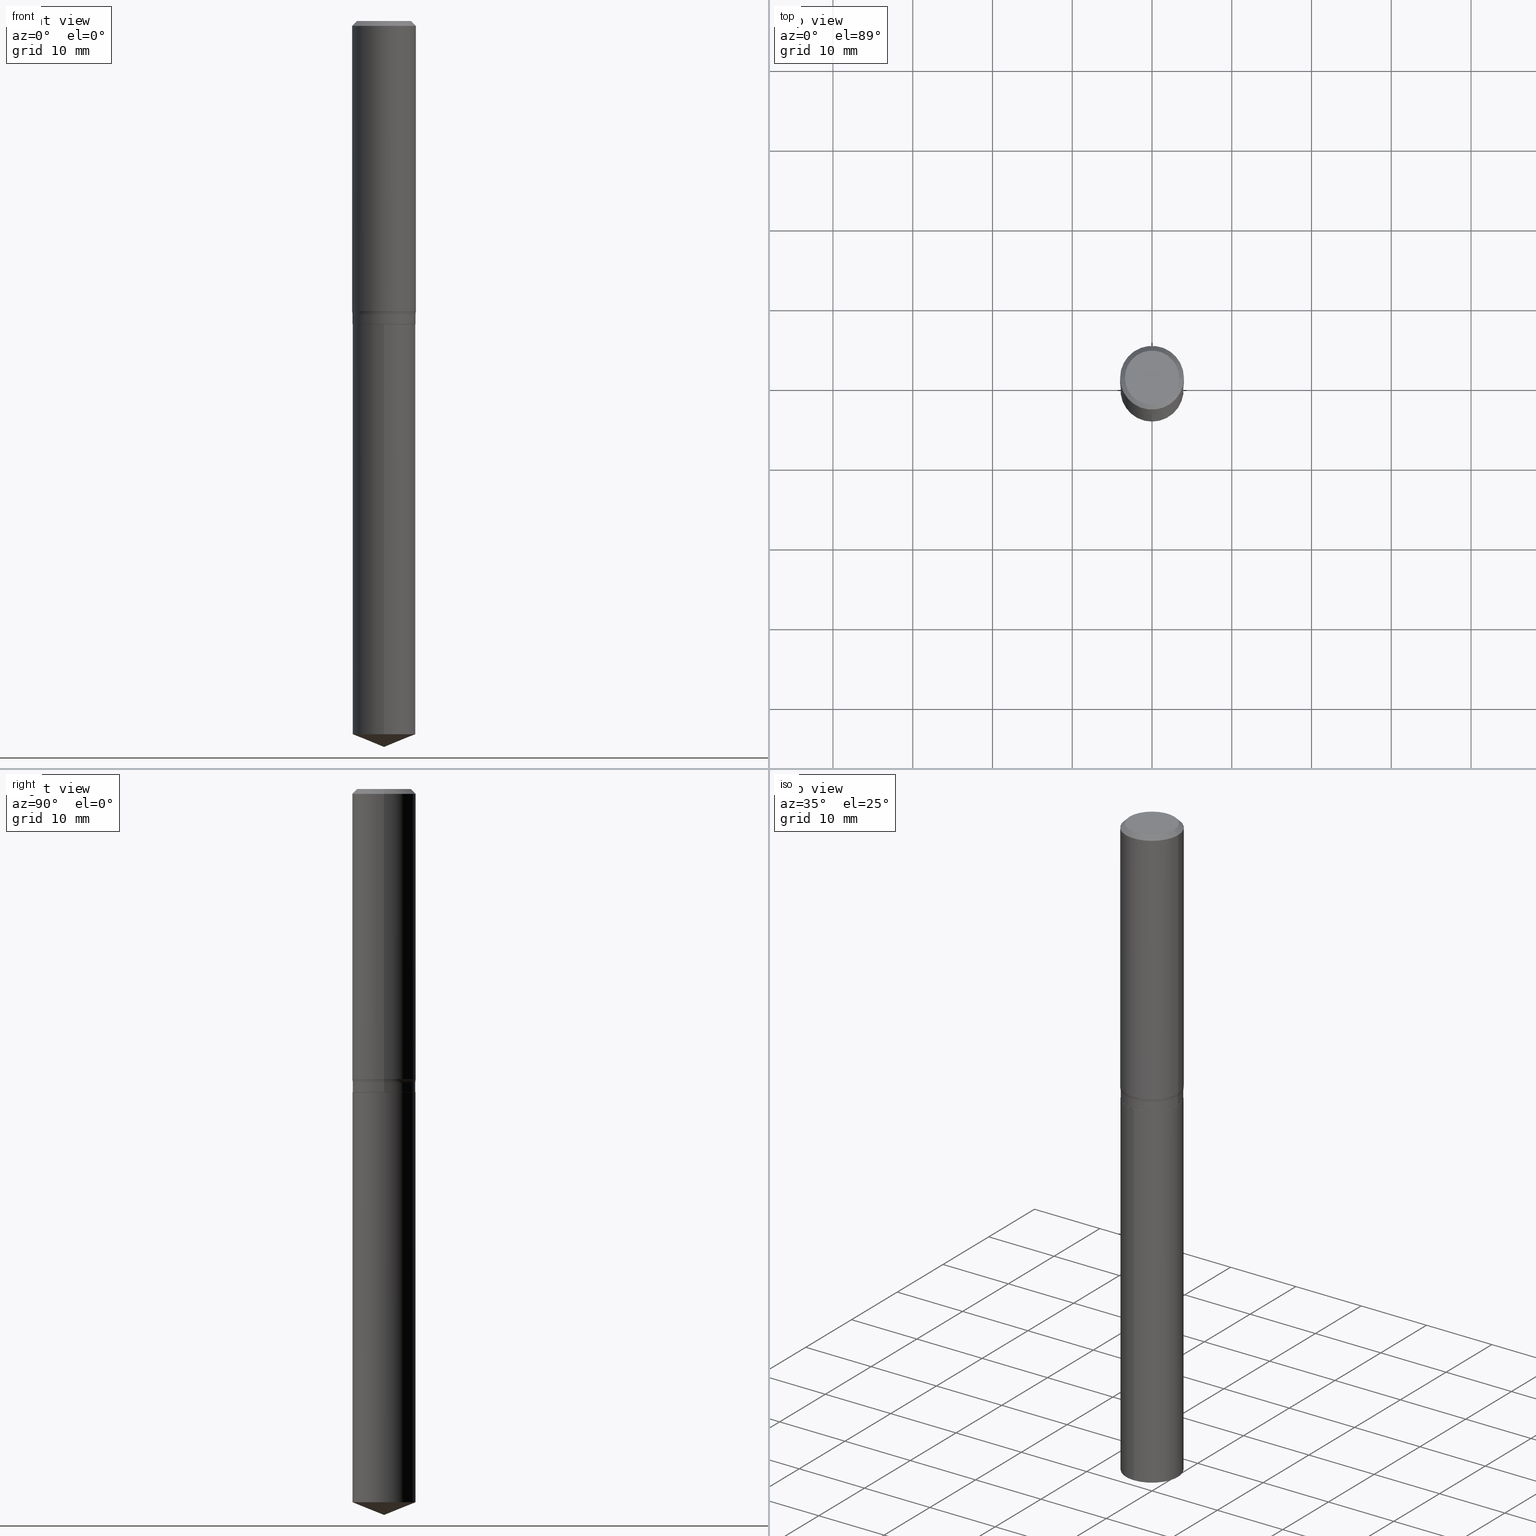
[diagram: canonical four-view strip — front | top / right | iso, engineering-drawing reading convention]
A machine part, canonical four-view strip (front | top / right | iso — engineering-drawing reading convention). The complete STEP part file that produces these views, byte-faithful:
ISO-10303-21;
HEADER;
FILE_DESCRIPTION (( 'STEP AP203' ),
    '1' );
FILE_NAME ('69272.STEP',
    '2024-04-19T17:36:34',
    ( '' ),
    ( '' ),
    'SwSTEP 2.0',
    'SolidWorks 2023',
    '' );
FILE_SCHEMA (( 'CONFIG_CONTROL_DESIGN' ));
ENDSEC;

DATA;
#1 = EDGE_LOOP ( 'NONE', ( #279, #152, #418, #468 ) ) ;
#2 = PERSON_AND_ORGANIZATION_ROLE ( 'creator' ) ;
#3 = CONICAL_SURFACE ( 'NONE', #195, 0.1549999999999999989, 0.7853981633972775267 ) ;
#4 = AXIS2_PLACEMENT_3D ( 'NONE', #372, #35, #148 ) ;
#5 = ORIENTED_EDGE ( 'NONE', *, *, #438, .F. ) ;
#6 = EDGE_CURVE ( 'NONE', #24, #223, #477, .T. ) ;
#7 = COORDINATED_UNIVERSAL_TIME_OFFSET ( 5, 0, .BEHIND. ) ;
#8 = VERTEX_POINT ( 'NONE', #433 ) ;
#9 = DIRECTION ( 'NONE',  ( -1.000000000000000000, 6.982962677686265922E-15, 0.000000000000000000 ) ) ;
#10 = AXIS2_PLACEMENT_3D ( 'NONE', #67, #329, #410 ) ;
#11 = VECTOR ( 'NONE', #179, 39.37007874015748143 ) ;
#12 = DIRECTION ( 'NONE',  ( -2.445468806185136597E-29, 3.491481338843145583E-15, 1.000000000000000000 ) ) ;
#13 = PLANE ( 'NONE',  #395 ) ;
#14 = VERTEX_POINT ( 'NONE', #287 ) ;
#15 = DIRECTION ( 'NONE',  ( -6.982962677686265133E-15, -1.000000000000000000, 3.513630860018345064E-15 ) ) ;
#16 = ORIENTED_EDGE ( 'NONE', *, *, #291, .T. ) ;
#17 = DIRECTION ( 'NONE',  ( 2.445445601509706217E-29, -3.491514569259089389E-15, -1.000000000000000000 ) ) ;
#18 = VECTOR ( 'NONE', #360, 39.37007874015748854 ) ;
#19 = ORGANIZATION ( 'UNSPECIFIED', 'UNSPECIFIED', '' ) ;
#20 = LOCAL_TIME ( 13, 36, 34.00000000000000000, #181 ) ;
#21 = APPROVAL_STATUS ( 'not_yet_approved' ) ;
#22 = CARTESIAN_POINT ( 'NONE',  ( 0.1575000000000000011, -1.163014681279185964E-15, -0.02362500000000014588 ) ) ;
#23 = CYLINDRICAL_SURFACE ( 'NONE', #4, 0.1554999999999999993 ) ;
#24 = VERTEX_POINT ( 'NONE', #316 ) ;
#25 = FACE_OUTER_BOUND ( 'NONE', #258, .T. ) ;
#26 = VECTOR ( 'NONE', #450, 39.37007874015748143 ) ;
#27 = DIRECTION ( 'NONE',  ( 1.000000000000000000, -6.982962677686268288E-15, 0.000000000000000000 ) ) ;
#28 = ORIENTED_EDGE ( 'NONE', *, *, #283, .T. ) ;
#29 = EDGE_CURVE ( 'NONE', #167, #445, #365, .T. ) ;
#30 = CARTESIAN_POINT ( 'NONE',  ( 3.659399521575438742E-29, -5.224652675444883351E-15, -1.496400000000000174 ) ) ;
#31 = CARTESIAN_POINT ( 'NONE',  ( -0.1554999999999999993, 1.104893954106955784E-15, -7.648944065346378824E-30 ) ) ;
#32 = CYLINDRICAL_SURFACE ( 'NONE', #185, 0.1554999999999999993 ) ;
#33 = ORIENTED_EDGE ( 'NONE', *, *, #188, .F. ) ;
#34 = DIRECTION ( 'NONE',  ( 1.000000000000000000, -6.982962677686263555E-15, 0.000000000000000000 ) ) ;
#35 = DIRECTION ( 'NONE',  ( -2.445445601509706497E-29, 3.491514569259089389E-15, 1.000000000000000000 ) ) ;
#36 = DIMENSIONAL_EXPONENTS ( 1.000000000000000000, 0.000000000000000000, 0.000000000000000000, 0.000000000000000000, 0.000000000000000000, 0.000000000000000000, 0.000000000000000000 ) ;
#37 = VERTEX_POINT ( 'NONE', #135 ) ;
#38 = APPLICATION_PROTOCOL_DEFINITION ( 'international standard', 'config_control_design', 1994, #218 ) ;
#39 = EDGE_CURVE ( 'NONE', #437, #194, #213, .T. ) ;
#40 = PERSON_AND_ORGANIZATION_ROLE ( 'classification_officer' ) ;
#41 = CONICAL_SURFACE ( 'NONE', #10, 0.1575000000000000011, 0.7853981633974449483 ) ;
#42 = AXIS2_PLACEMENT_3D ( 'NONE', #91, #52, #314 ) ;
#43 = ORIENTED_EDGE ( 'NONE', *, *, #267, .F. ) ;
#44 = CC_DESIGN_APPROVAL ( #131, ( #471 ) ) ;
#45 = ORIENTED_EDGE ( 'NONE', *, *, #226, .T. ) ;
#46 = CALENDAR_DATE ( 2024, 19, 4 ) ;
#47 = CARTESIAN_POINT ( 'NONE',  ( -0.1338749999999999940, 9.760872517903331886E-16, 4.101342130337800673E-18 ) ) ;
#48 = ORIENTED_EDGE ( 'NONE', *, *, #248, .F. ) ;
#49 = UNCERTAINTY_MEASURE_WITH_UNIT (LENGTH_MEASURE( 1.000000000000000082E-05 ), #401, 'distance_accuracy_value', 'NONE');
#50 = VECTOR ( 'NONE', #377, 39.37007874015748143 ) ;
#51 = PRODUCT_DEFINITION_FORMATION_WITH_SPECIFIED_SOURCE ( 'ANY', '', #158, .NOT_KNOWN. ) ;
#52 = DIRECTION ( 'NONE',  ( -2.445468806185136597E-29, 3.491481338843145583E-15, 1.000000000000000000 ) ) ;
#53 = ADVANCED_FACE ( 'NONE', ( #475 ), #41, .T. ) ;
#54 = CARTESIAN_POINT ( 'NONE',  ( -1.002970424325032604E-46, 1.431975951230895391E-32, 4.101342130344482109E-18 ) ) ;
#55 = CONICAL_SURFACE ( 'NONE', #307, 0.1575000000000000011, 0.7853981633974449483 ) ;
#56 = DIRECTION ( 'NONE',  ( 1.000000000000000000, -6.982962677686263555E-15, 0.000000000000000000 ) ) ;
#57 = AXIS2_PLACEMENT_3D ( 'NONE', #58, #166, #15 ) ;
#58 = CARTESIAN_POINT ( 'NONE',  ( 8.608428557293372452E-29, -1.229068880858470422E-14, -3.520173921882633561 ) ) ;
#59 = CARTESIAN_POINT ( 'NONE',  ( -1.085850696380128480E-15, -0.1555000000000123228, -3.520173921882633117 ) ) ;
#60 = ADVANCED_FACE ( 'NONE', ( #326 ), #32, .T. ) ;
#61 = LINE ( 'NONE', #432, #229 ) ;
#62 = PLANE ( 'NONE',  #463 ) ;
#63 = CC_DESIGN_APPROVAL ( #490, ( #309 ) ) ;
#64 = CARTESIAN_POINT ( 'NONE',  ( 0.000000000000000000, 0.000000000000000000, 0.000000000000000000 ) ) ;
#65 = DIRECTION ( 'NONE',  ( -2.438088387897960049E-29, 3.491481338843145188E-15, 1.000000000000000000 ) ) ;
#66 = EDGE_CURVE ( 'NONE', #223, #37, #254, .T. ) ;
#67 = CARTESIAN_POINT ( 'NONE',  ( 5.777420054612421104E-31, -8.248624663016984002E-17, -0.02362500000000014588 ) ) ;
#68 = EDGE_LOOP ( 'NONE', ( #141, #100, #491, #177 ) ) ;
#69 = CIRCLE ( 'NONE', #176, 0.1575000000000000011 ) ;
#70 = CARTESIAN_POINT ( 'NONE',  ( -0.1575000000000000844, -3.879823846748023569E-15, -1.431750071225214915 ) ) ;
#71 = AXIS2_PLACEMENT_3D ( 'NONE', #230, #345, #304 ) ;
#72 = ORIENTED_EDGE ( 'NONE', *, *, #6, .T. ) ;
#73 = DIRECTION ( 'NONE',  ( 1.000000000000000000, -6.982962677686266711E-15, 4.876176775795935793E-29 ) ) ;
#74 = APPROVAL_STATUS ( 'not_yet_approved' ) ;
#75 = EDGE_LOOP ( 'NONE', ( #16, #146 ) ) ;
#76 = EDGE_CURVE ( 'NONE', #445, #14, #154, .T. ) ;
#77 = CARTESIAN_POINT ( 'NONE',  ( 0.000000000000000000, 0.000000000000000000, 0.000000000000000000 ) ) ;
#78 = ORIENTED_EDGE ( 'NONE', *, *, #39, .F. ) ;
#79 = CARTESIAN_POINT ( 'NONE',  ( -8.751531957252333368E-28, 1.249511565384764858E-13, 35.78707874015748303 ) ) ;
#80 = CIRCLE ( 'NONE', #127, 0.1554999999999999993 ) ;
#81 = ORIENTED_EDGE ( 'NONE', *, *, #291, .F. ) ;
#82 = LENGTH_MEASURE_WITH_UNIT ( LENGTH_MEASURE( 0.02539999999999999897 ), #461 );
#83 = DIRECTION ( 'NONE',  ( -1.000000000000000000, 6.982962677686265922E-15, -4.876176775795935793E-29 ) ) ;
#84 = DIRECTION ( 'NONE',  ( -2.445445601509706497E-29, 3.491514569259089389E-15, 1.000000000000000000 ) ) ;
#85 = CARTESIAN_POINT ( 'NONE',  ( 0.000000000000000000, 0.000000000000000000, 0.000000000000000000 ) ) ;
#86 = EDGE_CURVE ( 'NONE', #194, #184, #294, .T. ) ;
#87 = ORIENTED_EDGE ( 'NONE', *, *, #178, .T. ) ;
#88 = CARTESIAN_POINT ( 'NONE',  ( 3.659399521575439863E-29, -5.224652675444884140E-15, -1.496400000000000396 ) ) ;
#89 = DIRECTION ( 'NONE',  ( 0.7071067811864267805, -2.468850131080992517E-15, 0.7071067811866682540 ) ) ;
#90 = AXIS2_PLACEMENT_3D ( 'NONE', #85, #351, #132 ) ;
#91 = CARTESIAN_POINT ( 'NONE',  ( -1.002970424325032604E-46, 1.431975951230895391E-32, 4.101342130344482109E-18 ) ) ;
#92 = AXIS2_PLACEMENT_3D ( 'NONE', #392, #119, #83 ) ;
#93 = CARTESIAN_POINT ( 'NONE',  ( 3.658176787172346501E-29, -5.222906934775461847E-15, -1.495900000000000230 ) ) ;
#94 = ORIENTED_EDGE ( 'NONE', *, *, #172, .F. ) ;
#95 = CC_DESIGN_PERSON_AND_ORGANIZATION_ASSIGNMENT ( #107, #217, ( #158 ) ) ;
#96 = DIRECTION ( 'NONE',  ( 1.000000000000000000, -6.982962677686266711E-15, 0.000000000000000000 ) ) ;
#97 = ORIENTED_EDGE ( 'NONE', *, *, #157, .T. ) ;
#98 = CARTESIAN_POINT ( 'NONE',  ( 0.1338749999999999940, -1.040731925365424925E-15, 4.101342130351390035E-18 ) ) ;
#99 = ADVANCED_FACE ( 'NONE', ( #247 ), #3, .T. ) ;
#100 = ORIENTED_EDGE ( 'NONE', *, *, #459, .T. ) ;
#101 = CARTESIAN_POINT ( 'NONE',  ( -1.085850696380177586E-15, -0.1555000000000052174, -1.496399999999999730 ) ) ;
#102 = AXIS2_PLACEMENT_3D ( 'NONE', #88, #235, #56 ) ;
#103 = DIRECTION ( 'NONE',  ( 1.000000000000000000, -6.982962677686266711E-15, 4.876176775795935793E-29 ) ) ;
#104 = PERSON_AND_ORGANIZATION ( #476, #19 ) ;
#105 = VERTEX_POINT ( 'NONE', #138 ) ;
#106 = DIRECTION ( 'NONE',  ( -6.982962677686265133E-15, -1.000000000000000000, 3.513630860018345064E-15 ) ) ;
#107 = PERSON_AND_ORGANIZATION ( #476, #19 ) ;
#108 = EDGE_LOOP ( 'NONE', ( #373, #268, #441, #94 ) ) ;
#109 = DIRECTION ( 'NONE',  ( -6.982962677686266711E-15, -1.000000000000000000, 3.498761904101810992E-15 ) ) ;
#110 = ORIENTED_EDGE ( 'NONE', *, *, #449, .F. ) ;
#111 = ADVANCED_FACE ( 'NONE', ( #173 ), #142, .T. ) ;
#112 = DIRECTION ( 'NONE',  ( 1.000000000000000000, -6.982962677686267499E-15, 4.883557194083113462E-29 ) ) ;
#113 = CIRCLE ( 'NONE', #102, 0.1549999999999999989 ) ;
#114 = ORIENTED_EDGE ( 'NONE', *, *, #116, .F. ) ;
#115 = CC_DESIGN_APPROVAL ( #200, ( #51 ) ) ;
#116 = EDGE_CURVE ( 'NONE', #445, #378, #219, .T. ) ;
#117 = PERSON_AND_ORGANIZATION_ROLE ( 'design_supplier' ) ;
#118 = ADVANCED_FACE ( 'NONE', ( #337 ), #55, .T. ) ;
#119 = DIRECTION ( 'NONE',  ( 2.438088387897960049E-29, -3.491481338843145188E-15, -1.000000000000000000 ) ) ;
#120 = PERSON_AND_ORGANIZATION ( #476, #19 ) ;
#121 = EDGE_CURVE ( 'NONE', #480, #14, #409, .T. ) ;
#122 = VECTOR ( 'NONE', #277, 39.37007874015748143 ) ;
#123 = EDGE_CURVE ( 'NONE', #488, #215, #272, .T. ) ;
#124 = ORIENTED_EDGE ( 'NONE', *, *, #172, .T. ) ;
#125 = VECTOR ( 'NONE', #276, 39.37007874015748143 ) ;
#126 = FACE_OUTER_BOUND ( 'NONE', #331, .T. ) ;
#127 = AXIS2_PLACEMENT_3D ( 'NONE', #204, #363, #361 ) ;
#128 = DIRECTION ( 'NONE',  ( 1.000000000000000000, -6.982962677686263555E-15, 0.000000000000000000 ) ) ;
#129 = CARTESIAN_POINT ( 'NONE',  ( -0.1549999999999999989, -4.123311435016729451E-15, -1.496400000000000396 ) ) ;
#130 = ORIENTED_EDGE ( 'NONE', *, *, #259, .F. ) ;
#131 = APPROVAL ( #205, 'UNSPECIFIED' ) ;
#132 = DIRECTION ( 'NONE',  ( 1.000000000000000000, -6.982962677686267499E-15, 4.876176775795936353E-29 ) ) ;
#133 = VECTOR ( 'NONE', #414, 39.37007874015748143 ) ;
#134 = AXIS2_PLACEMENT_3D ( 'NONE', #293, #451, #426 ) ;
#135 = CARTESIAN_POINT ( 'NONE',  ( -0.1554999999999999993, -4.036661465473460250E-15, -1.495900000000000230 ) ) ;
#136 = APPROVAL_ROLE ( '' ) ;
#137 = EDGE_LOOP ( 'NONE', ( #274, #28, #81, #387 ) ) ;
#138 = CARTESIAN_POINT ( 'NONE',  ( 0.1575000000000000011, -1.182302868365756679E-15, -0.02362500000000014588 ) ) ;
#139 = DIRECTION ( 'NONE',  ( -2.445468806185136597E-29, 3.491481338843145583E-15, 1.000000000000000000 ) ) ;
#140 = DIRECTION ( 'NONE',  ( -2.445468806185136597E-29, 3.491481338843145583E-15, 1.000000000000000000 ) ) ;
#141 = ORIENTED_EDGE ( 'NONE', *, *, #438, .T. ) ;
#142 = CYLINDRICAL_SURFACE ( 'NONE', #220, 0.1554999999999999993 ) ;
#143 = DIRECTION ( 'NONE',  ( -2.445468806185136597E-29, 3.491481338843145583E-15, 1.000000000000000000 ) ) ;
#144 = ADVANCED_FACE ( 'NONE', ( #457 ), #444, .T. ) ;
#145 = DIRECTION ( 'NONE',  ( 1.000000000000000000, -6.982962677686263555E-15, 0.000000000000000000 ) ) ;
#146 = ORIENTED_EDGE ( 'NONE', *, *, #473, .T. ) ;
#147 = CALENDAR_DATE ( 2024, 19, 4 ) ;
#148 = DIRECTION ( 'NONE',  ( -6.982962677686265133E-15, -1.000000000000000000, 3.513630860018345064E-15 ) ) ;
#149 = LINE ( 'NONE', #400, #122 ) ;
#150 = AXIS2_PLACEMENT_3D ( 'NONE', #357, #472, #252 ) ;
#151 = EDGE_LOOP ( 'NONE', ( #339, #189, #398, #295 ) ) ;
#152 = ORIENTED_EDGE ( 'NONE', *, *, #267, .T. ) ;
#153 = ORIENTED_EDGE ( 'NONE', *, *, #473, .F. ) ;
#154 = CIRCLE ( 'NONE', #209, 0.07800000000000006928 ) ;
#155 = VERTEX_POINT ( 'NONE', #388 ) ;
#156 = LINE ( 'NONE', #298, #301 ) ;
#157 = EDGE_CURVE ( 'NONE', #378, #105, #69, .T. ) ;
#158 = PRODUCT ( '69272', '69272', '', ( #389 ) ) ;
#159 = DIRECTION ( 'NONE',  ( 1.000000000000000000, -6.982962677686266711E-15, 0.000000000000000000 ) ) ;
#160 = DIRECTION ( 'NONE',  ( 1.000000000000000000, -6.982962677686265922E-15, 0.000000000000000000 ) ) ;
#161 = VECTOR ( 'NONE', #467, 39.37007874015748143 ) ;
#162 = LOCAL_TIME ( 13, 36, 34.00000000000000000, #183 ) ;
#163 = CARTESIAN_POINT ( 'NONE',  ( 3.501300137434611015E-29, -4.998928655570182750E-15, -1.431750071225214915 ) ) ;
#164 = EDGE_CURVE ( 'NONE', #167, #480, #404, .T. ) ;
#165 = DIRECTION ( 'NONE',  ( 1.000000000000000000, -6.982962677686265922E-15, 4.876176775795935793E-29 ) ) ;
#166 = DIRECTION ( 'NONE',  ( -2.445445601509706497E-29, 3.491514569259089389E-15, 1.000000000000000000 ) ) ;
#167 = VERTEX_POINT ( 'NONE', #380 ) ;
#168 = PRODUCT_RELATED_PRODUCT_CATEGORY ( 'detail', '', ( #158 ) ) ;
#169 = CALENDAR_DATE ( 2024, 19, 4 ) ;
#170 = DIRECTION ( 'NONE',  ( -6.982962677686266711E-15, -1.000000000000000000, 3.498761904101810992E-15 ) ) ;
#171 = DIRECTION ( 'NONE',  ( 6.982962677686265922E-15, 1.000000000000000000, -3.491514569259089389E-15 ) ) ;
#172 = EDGE_CURVE ( 'NONE', #14, #480, #187, .T. ) ;
#173 = FACE_OUTER_BOUND ( 'NONE', #393, .T. ) ;
#174 = DIRECTION ( 'NONE',  ( -2.445468806185136597E-29, 3.491481338843145583E-15, 1.000000000000000000 ) ) ;
#175 = PERSON_AND_ORGANIZATION ( #476, #19 ) ;
#176 = AXIS2_PLACEMENT_3D ( 'NONE', #305, #231, #190 ) ;
#177 = ORIENTED_EDGE ( 'NONE', *, *, #245, .F. ) ;
#178 = EDGE_CURVE ( 'NONE', #215, #105, #232, .T. ) ;
#179 = DIRECTION ( 'NONE',  ( -2.445468806185136877E-29, 3.491481338843145188E-15, 1.000000000000000000 ) ) ;
#180 = DIRECTION ( 'NONE',  ( -2.445468806185136597E-29, 3.491481338843145583E-15, 1.000000000000000000 ) ) ;
#181 = COORDINATED_UNIVERSAL_TIME_OFFSET ( 5, 0, .BEHIND. ) ;
#182 = EDGE_LOOP ( 'NONE', ( #282, #327, #370, #214 ) ) ;
#183 = COORDINATED_UNIVERSAL_TIME_OFFSET ( 5, 0, .BEHIND. ) ;
#184 = VERTEX_POINT ( 'NONE', #197 ) ;
#185 = AXIS2_PLACEMENT_3D ( 'NONE', #64, #180, #103 ) ;
#186 = DIRECTION ( 'NONE',  ( -6.982962677686265133E-15, -1.000000000000000000, 3.513630860018345064E-15 ) ) ;
#187 = CIRCLE ( 'NONE', #446, 0.1554999999999999993 ) ;
#188 = EDGE_CURVE ( 'NONE', #8, #194, #489, .T. ) ;
#189 = ORIENTED_EDGE ( 'NONE', *, *, #29, .F. ) ;
#190 = DIRECTION ( 'NONE',  ( 1.000000000000000000, -6.982962677686265922E-15, 0.000000000000000000 ) ) ;
#191 = VECTOR ( 'NONE', #234, 39.37007874015748143 ) ;
#192 = CARTESIAN_POINT ( 'NONE',  ( 1.104893954106992072E-15, 0.1554999999999947535, -1.496400000000000841 ) ) ;
#193 = DIRECTION ( 'NONE',  ( 1.000000000000000000, -6.982962677686264344E-15, 0.000000000000000000 ) ) ;
#194 = VERTEX_POINT ( 'NONE', #59 ) ;
#195 = AXIS2_PLACEMENT_3D ( 'NONE', #412, #355, #128 ) ;
#196 = AXIS2_PLACEMENT_3D ( 'NONE', #77, #417, #73 ) ;
#197 = CARTESIAN_POINT ( 'NONE',  ( -1.085850696380177586E-15, -0.1555000000000052174, -1.496399999999999730 ) ) ;
#198 = DIRECTION ( 'NONE',  ( -2.445468806185136597E-29, 3.491481338843145583E-15, 1.000000000000000000 ) ) ;
#199 = ORIENTED_EDGE ( 'NONE', *, *, #86, .T. ) ;
#200 = APPROVAL ( #74, 'UNSPECIFIED' ) ;
#201 = CARTESIAN_POINT ( 'NONE',  ( 3.659399521575438742E-29, -5.224652675444883351E-15, -1.496400000000000174 ) ) ;
#202 = AXIS2_PLACEMENT_3D ( 'NONE', #492, #397, #193 ) ;
#203 = ADVANCED_FACE ( 'NONE', ( #386 ), #243, .F. ) ;
#204 = CARTESIAN_POINT ( 'NONE',  ( 3.659399521575438742E-29, -5.224652675444883351E-15, -1.496400000000000174 ) ) ;
#205 = APPROVAL_STATUS ( 'not_yet_approved' ) ;
#206 = CARTESIAN_POINT ( 'NONE',  ( -0.2335000000000000131, -3.401086616385535602E-15, -1.449299999999999811 ) ) ;
#207 = APPROVAL_DATE_TIME ( #443, #490 ) ;
#208 = ORIENTED_EDGE ( 'NONE', *, *, #350, .F. ) ;
#209 = AXIS2_PLACEMENT_3D ( 'NONE', #206, #362, #246 ) ;
#210 = CIRCLE ( 'NONE', #465, 0.1575000000000000011 ) ;
#211 = LOCAL_TIME ( 13, 36, 34.00000000000000000, #341 ) ;
#212 = CARTESIAN_POINT ( 'NONE',  ( 1.104893954107042165E-15, 0.1554999999999947535, -1.496400000000000841 ) ) ;
#213 = LINE ( 'NONE', #439, #18 ) ;
#214 = ORIENTED_EDGE ( 'NONE', *, *, #226, .F. ) ;
#215 = VERTEX_POINT ( 'NONE', #98 ) ;
#216 = LINE ( 'NONE', #375, #26 ) ;
#217 = PERSON_AND_ORGANIZATION_ROLE ( 'design_owner' ) ;
#218 = APPLICATION_CONTEXT ( 'configuration controlled 3d designs of mechanical parts and assemblies' ) ;
#219 = LINE ( 'NONE', #260, #394 ) ;
#220 = AXIS2_PLACEMENT_3D ( 'NONE', #30, #447, #106 ) ;
#221 = CC_DESIGN_DATE_AND_TIME_ASSIGNMENT ( #330, #479, ( #309 ) ) ;
#222 = TOROIDAL_SURFACE ( 'NONE', #150, 0.2335000000000000131, 0.07800000000000002764 ) ;
#223 = VERTEX_POINT ( 'NONE', #484 ) ;
#224 = PRODUCT_DEFINITION_SHAPE ( 'NONE', 'NONE',  #309 ) ;
#225 = COORDINATED_UNIVERSAL_TIME_OFFSET ( 5, 0, .BEHIND. ) ;
#226 = EDGE_CURVE ( 'NONE', #167, #105, #149, .T. ) ;
#227 = PLANE ( 'NONE',  #92 ) ;
#228 = APPLICATION_PROTOCOL_DEFINITION ( 'international standard', 'config_control_design', 1994, #317 ) ;
#229 = VECTOR ( 'NONE', #233, 39.37007874015748143 ) ;
#230 = CARTESIAN_POINT ( 'NONE',  ( 3.659399521575438742E-29, -5.224652675444883351E-15, -1.496400000000000174 ) ) ;
#231 = DIRECTION ( 'NONE',  ( -2.445468806185136597E-29, 3.491481338843145583E-15, 1.000000000000000000 ) ) ;
#232 = LINE ( 'NONE', #22, #191 ) ;
#233 = DIRECTION ( 'NONE',  ( -2.445468806185136877E-29, 3.491481338843145188E-15, 1.000000000000000000 ) ) ;
#234 = DIRECTION ( 'NONE',  ( 0.7071067811865451302, -7.319954787623248157E-15, -0.7071067811865499042 ) ) ;
#235 = DIRECTION ( 'NONE',  ( -2.445468806185136597E-29, 3.491481338843145583E-15, 1.000000000000000000 ) ) ;
#236 = ADVANCED_FACE ( 'NONE', ( #240 ), #62, .F. ) ;
#237 = AXIS2_PLACEMENT_3D ( 'NONE', #338, #174, #34 ) ;
#238 = ORIENTED_EDGE ( 'NONE', *, *, #66, .T. ) ;
#239 = EDGE_CURVE ( 'NONE', #105, #378, #210, .T. ) ;
#240 = FACE_OUTER_BOUND ( 'NONE', #75, .T. ) ;
#241 = ADVANCED_FACE ( 'NONE', ( #312 ), #470, .T. ) ;
#242 = AXIS2_PLACEMENT_3D ( 'NONE', #275, #84, #170 ) ;
#243 = TOROIDAL_SURFACE ( 'NONE', #269, 0.2335000000000000131, 0.07800000000000002764 ) ;
#244 = FACE_OUTER_BOUND ( 'NONE', #108, .T. ) ;
#245 = EDGE_CURVE ( 'NONE', #155, #480, #61, .T. ) ;
#246 = DIRECTION ( 'NONE',  ( -1.000000000000000000, 7.105427357600997914E-15, 0.000000000000000000 ) ) ;
#247 = FACE_OUTER_BOUND ( 'NONE', #261, .T. ) ;
#248 = EDGE_CURVE ( 'NONE', #215, #488, #251, .T. ) ;
#249 = LINE ( 'NONE', #487, #50 ) ;
#250 = EDGE_LOOP ( 'NONE', ( #110, #482, #33 ) ) ;
#251 = CIRCLE ( 'NONE', #42, 0.1338749999999999940 ) ;
#252 = DIRECTION ( 'NONE',  ( 1.000000000000000000, -6.982962677686267499E-15, 4.883557194083113462E-29 ) ) ;
#253 = LOCAL_TIME ( 13, 36, 34.00000000000000000, #7 ) ;
#254 = LINE ( 'NONE', #129, #133 ) ;
#255 = ORIENTED_EDGE ( 'NONE', *, *, #164, .F. ) ;
#256 = ADVANCED_BREP_SHAPE_REPRESENTATION ( '69272', ( #353, #364, #134 ), #356 ) ;
#257 = DIRECTION ( 'NONE',  ( -2.445468806185136597E-29, 3.491481338843145583E-15, 1.000000000000000000 ) ) ;
#258 = EDGE_LOOP ( 'NONE', ( #114, #297, #45, #366 ) ) ;
#259 = EDGE_CURVE ( 'NONE', #445, #167, #324, .T. ) ;
#260 = CARTESIAN_POINT ( 'NONE',  ( -0.1575000000000000566, 1.119104808822158195E-15, -7.747322767151479787E-30 ) ) ;
#261 = EDGE_LOOP ( 'NONE', ( #72, #238, #5, #208 ) ) ;
#262 =( NAMED_UNIT ( * ) PLANE_ANGLE_UNIT ( ) SI_UNIT ( $, .RADIAN. ) );
#263 = DIRECTION ( 'NONE',  ( -2.445445601509706497E-29, 3.491514569259089389E-15, 1.000000000000000000 ) ) ;
#264 = AXIS2_PLACEMENT_3D ( 'NONE', #310, #270, #403 ) ;
#265 = CIRCLE ( 'NONE', #431, 0.1554999999999999993 ) ;
#266 = EDGE_LOOP ( 'NONE', ( #130, #288, #124, #255 ) ) ;
#267 = EDGE_CURVE ( 'NONE', #223, #24, #113, .T. ) ;
#268 = ORIENTED_EDGE ( 'NONE', *, *, #427, .T. ) ;
#269 = AXIS2_PLACEMENT_3D ( 'NONE', #442, #257, #112 ) ;
#270 = DIRECTION ( 'NONE',  ( -2.445468806185136597E-29, 3.491481338843145583E-15, 1.000000000000000000 ) ) ;
#271 = DIRECTION ( 'NONE',  ( 1.000000000000000000, -6.982962677686266711E-15, 4.876170806578254279E-29 ) ) ;
#272 = CIRCLE ( 'NONE', #408, 0.1338749999999999940 ) ;
#273 = AXIS2_PLACEMENT_3D ( 'NONE', #93, #139, #284 ) ;
#274 = ORIENTED_EDGE ( 'NONE', *, *, #469, .T. ) ;
#275 = CARTESIAN_POINT ( 'NONE',  ( -8.751531957252333368E-28, 1.249511565384764858E-13, 35.78707874015748303 ) ) ;
#276 = DIRECTION ( 'NONE',  ( -2.445445601509706497E-29, 3.491514569259089389E-15, 1.000000000000000000 ) ) ;
#277 = DIRECTION ( 'NONE',  ( -2.445468806185136877E-29, 3.491481338843145188E-15, 1.000000000000000000 ) ) ;
#278 = CARTESIAN_POINT ( 'NONE',  ( 3.659399521575439863E-29, -5.224652675444884140E-15, -1.496400000000000396 ) ) ;
#279 = ORIENTED_EDGE ( 'NONE', *, *, #66, .F. ) ;
#280 = CIRCLE ( 'NONE', #71, 0.1554999999999999993 ) ;
#281 = CALENDAR_DATE ( 2024, 19, 4 ) ;
#282 = ORIENTED_EDGE ( 'NONE', *, *, #29, .T. ) ;
#283 = EDGE_CURVE ( 'NONE', #8, #452, #436, .T. ) ;
#284 = DIRECTION ( 'NONE',  ( 1.000000000000000000, -6.982962677686266711E-15, 0.000000000000000000 ) ) ;
#285 = ORIENTED_EDGE ( 'NONE', *, *, #332, .F. ) ;
#286 = ADVANCED_FACE ( 'NONE', ( #325 ), #308, .T. ) ;
#287 = CARTESIAN_POINT ( 'NONE',  ( -0.1554999999999999993, -4.036661465473460250E-15, -1.449299999999999811 ) ) ;
#288 = ORIENTED_EDGE ( 'NONE', *, *, #76, .T. ) ;
#289 = APPROVAL_DATE_TIME ( #381, #131 ) ;
#290 = CARTESIAN_POINT ( 'NONE',  ( 8.762031590209278139E-29, -1.251009670165531742E-14, -3.583000000000000185 ) ) ;
#291 = EDGE_CURVE ( 'NONE', #184, #452, #80, .T. ) ;
#292 = EDGE_LOOP ( 'NONE', ( #78, #322, #422 ) ) ;
#293 = CARTESIAN_POINT ( 'NONE',  ( 0.000000000000000000, 0.000000000000000000, 0.000000000000000000 ) ) ;
#294 = LINE ( 'NONE', #101, #125 ) ;
#295 = ORIENTED_EDGE ( 'NONE', *, *, #121, .T. ) ;
#296 = CARTESIAN_POINT ( 'NONE',  ( 5.777420054612421104E-31, -8.248624663016984002E-17, -0.02362500000000014588 ) ) ;
#297 = ORIENTED_EDGE ( 'NONE', *, *, #259, .T. ) ;
#298 = CARTESIAN_POINT ( 'NONE',  ( 0.1549999999999999989, -6.307011890486255796E-15, -1.496400000000000396 ) ) ;
#299 = ORIENTED_EDGE ( 'NONE', *, *, #332, .T. ) ;
#300 = ADVANCED_FACE ( 'NONE', ( #25 ), #396, .T. ) ;
#301 = VECTOR ( 'NONE', #89, 39.37007874015748143 ) ;
#302 = APPROVAL_ROLE ( '' ) ;
#303 = PERSON_AND_ORGANIZATION ( #476, #19 ) ;
#304 = DIRECTION ( 'NONE',  ( -6.982962677686265133E-15, -1.000000000000000000, 3.513630860018345064E-15 ) ) ;
#305 = CARTESIAN_POINT ( 'NONE',  ( 5.777420054612421104E-31, -8.248624663016984002E-17, -0.02362500000000014588 ) ) ;
#306 = CYLINDRICAL_SURFACE ( 'NONE', #90, 0.1575000000000000566 ) ;
#307 = AXIS2_PLACEMENT_3D ( 'NONE', #296, #460, #9 ) ;
#308 = CONICAL_SURFACE ( 'NONE', #237, 0.1549999999999999989, 0.7853981633972775267 ) ;
#309 = PRODUCT_DEFINITION ( 'UNKNOWN', '', #51, #464 ) ;
#310 = CARTESIAN_POINT ( 'NONE',  ( 3.544217940804117919E-29, -5.060203904385369826E-15, -1.449299999999999811 ) ) ;
#311 = DIRECTION ( 'NONE',  ( -2.445468806185136597E-29, 3.491481338843145583E-15, 1.000000000000000000 ) ) ;
#312 = FACE_OUTER_BOUND ( 'NONE', #250, .T. ) ;
#313 = CARTESIAN_POINT ( 'NONE',  ( 1.817727659768126357E-29, -7.862031603005661996E-15, -1.496400000000000396 ) ) ;
#314 = DIRECTION ( 'NONE',  ( 1.000000000000000000, -6.982962677686266711E-15, 4.876170806578254279E-29 ) ) ;
#315 = CARTESIAN_POINT ( 'NONE',  ( -0.1575000000000000011, -1.421602642278017878E-15, -0.02362500000000014588 ) ) ;
#316 = CARTESIAN_POINT ( 'NONE',  ( 0.1549999999999999989, -6.307011890486255796E-15, -1.496400000000000396 ) ) ;
#317 = APPLICATION_CONTEXT ( 'configuration controlled 3d designs of mechanical parts and assemblies' ) ;
#318 = DATE_TIME_ROLE ( 'classification_date' ) ;
#319 = CARTESIAN_POINT ( 'NONE',  ( 3.501300137434611015E-29, -4.998928655570182750E-15, -1.431750071225214915 ) ) ;
#320 = ORIENTED_EDGE ( 'NONE', *, *, #239, .T. ) ;
#321 = CALENDAR_DATE ( 2024, 19, 4 ) ;
#322 = ORIENTED_EDGE ( 'NONE', *, *, #449, .T. ) ;
#323 = CC_DESIGN_DATE_AND_TIME_ASSIGNMENT ( #358, #318, ( #471 ) ) ;
#324 = CIRCLE ( 'NONE', #382, 0.1575000000000001399 ) ;
#325 = FACE_OUTER_BOUND ( 'NONE', #1, .T. ) ;
#326 = FACE_OUTER_BOUND ( 'NONE', #68, .T. ) ;
#327 = ORIENTED_EDGE ( 'NONE', *, *, #116, .T. ) ;
#328 = CARTESIAN_POINT ( 'NONE',  ( 8.608428557293372452E-29, -1.229068880858470422E-14, -3.520173921882633561 ) ) ;
#329 = DIRECTION ( 'NONE',  ( 2.445468806185136597E-29, -3.491481338843145583E-15, -1.000000000000000000 ) ) ;
#330 = DATE_AND_TIME ( #321, #20 ) ;
#331 = EDGE_LOOP ( 'NONE', ( #407, #43 ) ) ;
#332 = EDGE_CURVE ( 'NONE', #488, #378, #216, .T. ) ;
#333 = SECURITY_CLASSIFICATION_LEVEL ( 'unclassified' ) ;
#334 = ORIENTED_EDGE ( 'NONE', *, *, #123, .T. ) ;
#335 = CC_DESIGN_SECURITY_CLASSIFICATION ( #471, ( #51 ) ) ;
#336 = ORIENTED_EDGE ( 'NONE', *, *, #188, .T. ) ;
#337 = FACE_OUTER_BOUND ( 'NONE', #416, .T. ) ;
#338 = CARTESIAN_POINT ( 'NONE',  ( 3.659399521575439863E-29, -5.224652675444884140E-15, -1.496400000000000396 ) ) ;
#339 = ORIENTED_EDGE ( 'NONE', *, *, #76, .F. ) ;
#340 = DIRECTION ( 'NONE',  ( -2.445468806185136597E-29, 3.491481338843145583E-15, 1.000000000000000000 ) ) ;
#341 = COORDINATED_UNIVERSAL_TIME_OFFSET ( 5, 0, .BEHIND. ) ;
#342 = CC_DESIGN_PERSON_AND_ORGANIZATION_ASSIGNMENT ( #303, #117, ( #51 ) ) ;
#343 = CLOSED_SHELL ( 'NONE', ( #434, #144, #241, #111, #236 ) ) ;
#344 = CIRCLE ( 'NONE', #273, 0.1554999999999999993 ) ;
#345 = DIRECTION ( 'NONE',  ( -2.445445601509706497E-29, 3.491514569259089389E-15, 1.000000000000000000 ) ) ;
#346 = ADVANCED_FACE ( 'NONE', ( #458 ), #227, .F. ) ;
#347 = CARTESIAN_POINT ( 'NONE',  ( 0.1554999999999999993, -6.146054600765584489E-15, -1.449299999999999811 ) ) ;
#348 = CARTESIAN_POINT ( 'NONE',  ( 3.544217940804117919E-29, -5.060203904385369826E-15, -1.449299999999999811 ) ) ;
#349 = FACE_OUTER_BOUND ( 'NONE', #182, .T. ) ;
#350 = EDGE_CURVE ( 'NONE', #24, #155, #156, .T. ) ;
#351 = DIRECTION ( 'NONE',  ( -2.445468806185136597E-29, 3.491481338843145583E-15, 1.000000000000000000 ) ) ;
#352 = AXIS2_PLACEMENT_3D ( 'NONE', #278, #481, #145 ) ;
#353 = MANIFOLD_SOLID_BREP ( 'Body-Move/Copy2[1]', #343 ) ;
#354 = ADVANCED_FACE ( 'NONE', ( #349 ), #306, .T. ) ;
#355 = DIRECTION ( 'NONE',  ( -2.445468806185136597E-29, 3.491481338843145583E-15, 1.000000000000000000 ) ) ;
#356 =( GEOMETRIC_REPRESENTATION_CONTEXT ( 3 ) GLOBAL_UNCERTAINTY_ASSIGNED_CONTEXT ( ( #49 ) ) GLOBAL_UNIT_ASSIGNED_CONTEXT ( ( #401, #262, #424 ) ) REPRESENTATION_CONTEXT ( 'NONE', 'WORKASPACE' ) );
#357 = CARTESIAN_POINT ( 'NONE',  ( 3.544217940804117919E-29, -5.060203904385369826E-15, -1.449299999999999811 ) ) ;
#358 = DATE_AND_TIME ( #169, #253 ) ;
#359 = FACE_OUTER_BOUND ( 'NONE', #137, .T. ) ;
#360 = DIRECTION ( 'NONE',  ( -6.474490251793183362E-15, -0.9271838545667869802, 0.3746065934159129029 ) ) ;
#361 = DIRECTION ( 'NONE',  ( -6.982962677686265133E-15, -1.000000000000000000, 3.513630860018345064E-15 ) ) ;
#362 = DIRECTION ( 'NONE',  ( 7.105427357601001859E-15, 1.000000000000000000, -3.491481338843145583E-15 ) ) ;
#363 = DIRECTION ( 'NONE',  ( -2.445445601509706497E-29, 3.491514569259089389E-15, 1.000000000000000000 ) ) ;
#364 = MANIFOLD_SOLID_BREP ( 'Body-Move/Copy2[2]', #379 ) ;
#365 = CIRCLE ( 'NONE', #435, 0.1575000000000001399 ) ;
#366 = ORIENTED_EDGE ( 'NONE', *, *, #157, .F. ) ;
#367 = CIRCLE ( 'NONE', #478, 0.1554999999999999993 ) ;
#368 = CARTESIAN_POINT ( 'NONE',  ( 3.658176787172346501E-29, -5.222906934775461847E-15, -1.495900000000000230 ) ) ;
#369 = LINE ( 'NONE', #31, #11 ) ;
#370 = ORIENTED_EDGE ( 'NONE', *, *, #239, .F. ) ;
#371 = ADVANCED_FACE ( 'NONE', ( #126 ), #13, .F. ) ;
#372 = CARTESIAN_POINT ( 'NONE',  ( 3.659399521575438742E-29, -5.224652675444883351E-15, -1.496400000000000174 ) ) ;
#373 = ORIENTED_EDGE ( 'NONE', *, *, #459, .F. ) ;
#374 = APPROVAL_ROLE ( '' ) ;
#375 = CARTESIAN_POINT ( 'NONE',  ( -0.1575000000000000011, 1.017330375105417098E-15, -0.02362500000000014588 ) ) ;
#376 = CARTESIAN_POINT ( 'NONE',  ( 5.777420054612421104E-31, -8.248624663016984002E-17, -0.02362500000000014588 ) ) ;
#377 = DIRECTION ( 'NONE',  ( 6.588037525764795235E-15, 0.9271838545667896447, 0.3746065934159064637 ) ) ;
#378 = VERTEX_POINT ( 'NONE', #315 ) ;
#379 = CLOSED_SHELL ( 'NONE', ( #99, #53, #354, #399, #60, #430, #203, #300, #118, #346, #371, #286 ) ) ;
#380 = CARTESIAN_POINT ( 'NONE',  ( 0.1575000000000000844, -6.098745277305771019E-15, -1.431750071225214915 ) ) ;
#381 = DATE_AND_TIME ( #147, #162 ) ;
#382 = AXIS2_PLACEMENT_3D ( 'NONE', #163, #311, #466 ) ;
#383 = DIRECTION ( 'NONE',  ( -2.445468806185136877E-29, 3.491481338843145188E-15, 1.000000000000000000 ) ) ;
#384 = DIRECTION ( 'NONE',  ( 1.000000000000000000, -6.982962677686267499E-15, 4.876176775795936353E-29 ) ) ;
#385 = APPROVAL_PERSON_ORGANIZATION ( #104, #200, #136 ) ;
#386 = FACE_OUTER_BOUND ( 'NONE', #151, .T. ) ;
#387 = ORIENTED_EDGE ( 'NONE', *, *, #86, .F. ) ;
#388 = CARTESIAN_POINT ( 'NONE',  ( 0.1554999999999999993, -6.308757631155676510E-15, -1.495900000000000230 ) ) ;
#389 = MECHANICAL_CONTEXT ( 'NONE', #317, 'mechanical' ) ;
#390 = CC_DESIGN_PERSON_AND_ORGANIZATION_ASSIGNMENT ( #175, #2, ( #309 ) ) ;
#391 = PERSON_AND_ORGANIZATION_ROLE ( 'creator' ) ;
#392 = CARTESIAN_POINT ( 'NONE',  ( -5.014852121625163022E-47, 7.159879756154476955E-33, 2.050671065172241055E-18 ) ) ;
#393 = EDGE_LOOP ( 'NONE', ( #455, #336, #199, #153 ) ) ;
#394 = VECTOR ( 'NONE', #383, 39.37007874015748143 ) ;
#395 = AXIS2_PLACEMENT_3D ( 'NONE', #313, #65, #165 ) ;
#396 = CYLINDRICAL_SURFACE ( 'NONE', #456, 0.1575000000000000566 ) ;
#397 = DIRECTION ( 'NONE',  ( -6.982962677686266711E-15, -1.000000000000000000, 3.491481338843145583E-15 ) ) ;
#398 = ORIENTED_EDGE ( 'NONE', *, *, #164, .T. ) ;
#399 = ADVANCED_FACE ( 'NONE', ( #429 ), #222, .F. ) ;
#400 = CARTESIAN_POINT ( 'NONE',  ( 0.1575000000000000566, -1.099816621735587480E-15, 7.679978421878602237E-30 ) ) ;
#401 =( CONVERSION_BASED_UNIT ( 'INCH', #82 ) LENGTH_UNIT ( ) NAMED_UNIT ( #36 ) );
#402 = DATE_AND_TIME ( #46, #211 ) ;
#403 = DIRECTION ( 'NONE',  ( 1.000000000000000000, -6.982962677686266711E-15, 0.000000000000000000 ) ) ;
#404 = CIRCLE ( 'NONE', #202, 0.07800000000000006928 ) ;
#405 = APPROVAL_PERSON_ORGANIZATION ( #474, #131, #374 ) ;
#406 = SHAPE_DEFINITION_REPRESENTATION ( #224, #256 ) ;
#407 = ORIENTED_EDGE ( 'NONE', *, *, #6, .F. ) ;
#408 = AXIS2_PLACEMENT_3D ( 'NONE', #54, #198, #271 ) ;
#409 = CIRCLE ( 'NONE', #264, 0.1554999999999999993 ) ;
#410 = DIRECTION ( 'NONE',  ( -1.000000000000000000, 6.982962677686265922E-15, 0.000000000000000000 ) ) ;
#411 = LOCAL_TIME ( 13, 36, 34.00000000000000000, #225 ) ;
#412 = CARTESIAN_POINT ( 'NONE',  ( 3.659399521575439863E-29, -5.224652675444884140E-15, -1.496400000000000396 ) ) ;
#413 = CC_DESIGN_PERSON_AND_ORGANIZATION_ASSIGNMENT ( #421, #40, ( #471 ) ) ;
#414 = DIRECTION ( 'NONE',  ( -0.7071067811864267805, 7.493145998869918709E-15, 0.7071067811866682540 ) ) ;
#415 = CYLINDRICAL_SURFACE ( 'NONE', #196, 0.1554999999999999993 ) ;
#416 = EDGE_LOOP ( 'NONE', ( #448, #440, #299, #97 ) ) ;
#417 = DIRECTION ( 'NONE',  ( -2.445468806185136597E-29, 3.491481338843145583E-15, 1.000000000000000000 ) ) ;
#418 = ORIENTED_EDGE ( 'NONE', *, *, #350, .T. ) ;
#419 = PERSON_AND_ORGANIZATION ( #476, #19 ) ;
#420 = DIRECTION ( 'NONE',  ( -2.445468806185136597E-29, 3.491481338843145583E-15, 1.000000000000000000 ) ) ;
#421 = PERSON_AND_ORGANIZATION ( #476, #19 ) ;
#422 = ORIENTED_EDGE ( 'NONE', *, *, #469, .F. ) ;
#423 = EDGE_LOOP ( 'NONE', ( #48, #87, #320, #285 ) ) ;
#424 =( NAMED_UNIT ( * ) SI_UNIT ( $, .STERADIAN. ) SOLID_ANGLE_UNIT ( ) );
#425 = APPROVAL_DATE_TIME ( #402, #200 ) ;
#426 = DIRECTION ( 'NONE',  ( 1.000000000000000000, 0.000000000000000000, 0.000000000000000000 ) ) ;
#427 = EDGE_CURVE ( 'NONE', #37, #155, #367, .T. ) ;
#428 = APPROVAL_PERSON_ORGANIZATION ( #419, #490, #302 ) ;
#429 = FACE_OUTER_BOUND ( 'NONE', #266, .T. ) ;
#430 = ADVANCED_FACE ( 'NONE', ( #244 ), #415, .T. ) ;
#431 = AXIS2_PLACEMENT_3D ( 'NONE', #328, #483, #186 ) ;
#432 = CARTESIAN_POINT ( 'NONE',  ( 0.1554999999999999993, -1.085850696380214466E-15, 7.582454886362679822E-30 ) ) ;
#433 = CARTESIAN_POINT ( 'NONE',  ( 1.104893954107041770E-15, 0.1554999999999877591, -3.520173921882634005 ) ) ;
#434 = ADVANCED_FACE ( 'NONE', ( #359 ), #23, .T. ) ;
#435 = AXIS2_PLACEMENT_3D ( 'NONE', #319, #140, #27 ) ;
#436 = LINE ( 'NONE', #192, #161 ) ;
#437 = VERTEX_POINT ( 'NONE', #290 ) ;
#438 = EDGE_CURVE ( 'NONE', #155, #37, #344, .T. ) ;
#439 = CARTESIAN_POINT ( 'NONE',  ( 8.762031590209278139E-29, -1.251009670165531742E-14, -3.583000000000000185 ) ) ;
#440 = ORIENTED_EDGE ( 'NONE', *, *, #123, .F. ) ;
#441 = ORIENTED_EDGE ( 'NONE', *, *, #245, .T. ) ;
#442 = CARTESIAN_POINT ( 'NONE',  ( 3.544217940804117919E-29, -5.060203904385369826E-15, -1.449299999999999811 ) ) ;
#443 = DATE_AND_TIME ( #281, #411 ) ;
#444 = CONICAL_SURFACE ( 'NONE', #462, 97.44436430772888968, 1.186823891356146632 ) ;
#445 = VERTEX_POINT ( 'NONE', #70 ) ;
#446 = AXIS2_PLACEMENT_3D ( 'NONE', #348, #340, #159 ) ;
#447 = DIRECTION ( 'NONE',  ( -2.445445601509706497E-29, 3.491514569259089389E-15, 1.000000000000000000 ) ) ;
#448 = ORIENTED_EDGE ( 'NONE', *, *, #178, .F. ) ;
#449 = EDGE_CURVE ( 'NONE', #437, #8, #249, .T. ) ;
#450 = DIRECTION ( 'NONE',  ( -0.7071067811865451302, 2.468850131082231817E-15, -0.7071067811865499042 ) ) ;
#451 = DIRECTION ( 'NONE',  ( 0.000000000000000000, 0.000000000000000000, 1.000000000000000000 ) ) ;
#452 = VERTEX_POINT ( 'NONE', #212 ) ;
#453 = CC_DESIGN_PERSON_AND_ORGANIZATION_ASSIGNMENT ( #120, #391, ( #51 ) ) ;
#454 = EDGE_LOOP ( 'NONE', ( #334, #485 ) ) ;
#455 = ORIENTED_EDGE ( 'NONE', *, *, #283, .F. ) ;
#456 = AXIS2_PLACEMENT_3D ( 'NONE', #486, #143, #384 ) ;
#457 = FACE_OUTER_BOUND ( 'NONE', #292, .T. ) ;
#458 = FACE_OUTER_BOUND ( 'NONE', #454, .T. ) ;
#459 = EDGE_CURVE ( 'NONE', #37, #14, #369, .T. ) ;
#460 = DIRECTION ( 'NONE',  ( 2.445468806185136597E-29, -3.491481338843145583E-15, -1.000000000000000000 ) ) ;
#461 =( LENGTH_UNIT ( ) NAMED_UNIT ( * ) SI_UNIT ( $, .METRE. ) );
#462 = AXIS2_PLACEMENT_3D ( 'NONE', #79, #263, #109 ) ;
#463 = AXIS2_PLACEMENT_3D ( 'NONE', #201, #17, #171 ) ;
#464 = DESIGN_CONTEXT ( 'detailed design', #218, 'design' ) ;
#465 = AXIS2_PLACEMENT_3D ( 'NONE', #376, #12, #160 ) ;
#466 = DIRECTION ( 'NONE',  ( 1.000000000000000000, -6.982962677686268288E-15, 0.000000000000000000 ) ) ;
#467 = DIRECTION ( 'NONE',  ( -2.445445601509706497E-29, 3.491514569259089389E-15, 1.000000000000000000 ) ) ;
#468 = ORIENTED_EDGE ( 'NONE', *, *, #427, .F. ) ;
#469 = EDGE_CURVE ( 'NONE', #194, #8, #265, .T. ) ;
#470 = CONICAL_SURFACE ( 'NONE', #242, 97.44436430772888968, 1.186823891356146632 ) ;
#471 = SECURITY_CLASSIFICATION ( '', '', #333 ) ;
#472 = DIRECTION ( 'NONE',  ( -2.445468806185136597E-29, 3.491481338843145583E-15, 1.000000000000000000 ) ) ;
#473 = EDGE_CURVE ( 'NONE', #452, #184, #280, .T. ) ;
#474 = PERSON_AND_ORGANIZATION ( #476, #19 ) ;
#475 = FACE_OUTER_BOUND ( 'NONE', #423, .T. ) ;
#476 = PERSON ( 'UNSPECIFIED', 'UNSPECIFIED', 'UNSPECIFIED', ('UNSPECIFIED'), ('UNSPECIFIED'), ('UNSPECIFIED') ) ;
#477 = CIRCLE ( 'NONE', #352, 0.1549999999999999989 ) ;
#478 = AXIS2_PLACEMENT_3D ( 'NONE', #368, #420, #96 ) ;
#479 = DATE_TIME_ROLE ( 'creation_date' ) ;
#480 = VERTEX_POINT ( 'NONE', #347 ) ;
#481 = DIRECTION ( 'NONE',  ( -2.445468806185136597E-29, 3.491481338843145583E-15, 1.000000000000000000 ) ) ;
#482 = ORIENTED_EDGE ( 'NONE', *, *, #39, .T. ) ;
#483 = DIRECTION ( 'NONE',  ( -2.445445601509706497E-29, 3.491514569259089389E-15, 1.000000000000000000 ) ) ;
#484 = CARTESIAN_POINT ( 'NONE',  ( -0.1549999999999999989, -4.120662207842617461E-15, -1.496400000000000396 ) ) ;
#485 = ORIENTED_EDGE ( 'NONE', *, *, #248, .T. ) ;
#486 = CARTESIAN_POINT ( 'NONE',  ( 0.000000000000000000, 0.000000000000000000, 0.000000000000000000 ) ) ;
#487 = CARTESIAN_POINT ( 'NONE',  ( 8.762101646129704419E-29, -1.250999724966648130E-14, -3.583000000000000185 ) ) ;
#488 = VERTEX_POINT ( 'NONE', #47 ) ;
#489 = CIRCLE ( 'NONE', #57, 0.1554999999999999993 ) ;
#490 = APPROVAL ( #21, 'UNSPECIFIED' ) ;
#491 = ORIENTED_EDGE ( 'NONE', *, *, #121, .F. ) ;
#492 = CARTESIAN_POINT ( 'NONE',  ( 0.2335000000000000131, -6.690725689625113324E-15, -1.449299999999999811 ) ) ;
ENDSEC;
END-ISO-10303-21;
